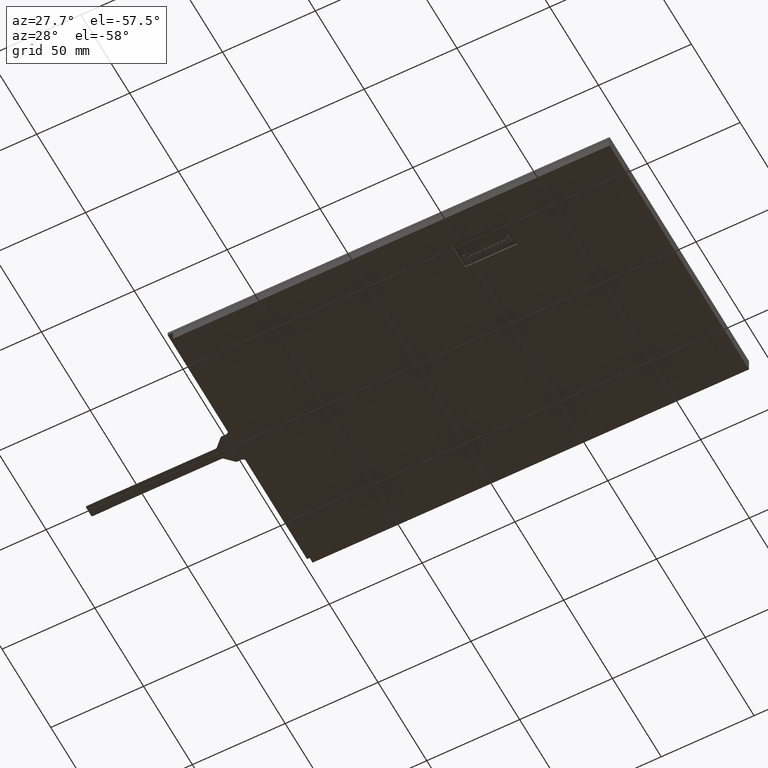
[diagram: clean part render]
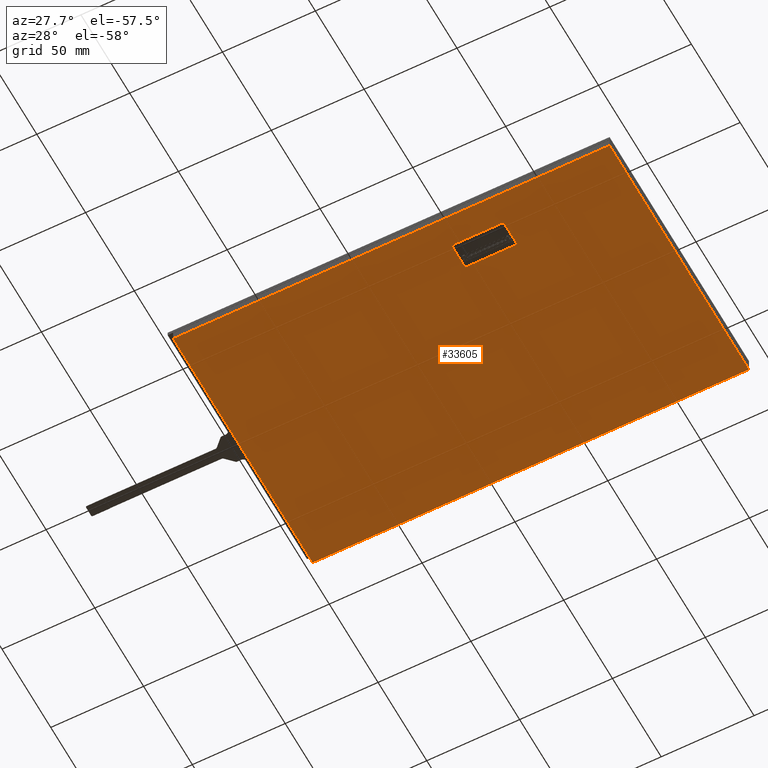
[diagram: same view with one face highlighted and labeled with its STEP entity id]
A machine part, auxiliary view. The second image highlights one B-rep face of the part: STEP entity #33605.
In plain terms, the highlighted planar face has unit normal (0, -0, -1).
Its self-contained STEP definition (entity closure, byte-faithful):
#1902=FACE_BOUND('',#5379,.T.);
#3572=FACE_OUTER_BOUND('',#5378,.T.);
#5378=EDGE_LOOP('',(#30823,#30824,#30825,#30826));
#5379=EDGE_LOOP('',(#30827,#30828,#30829,#30830));
#9083=LINE('',#57067,#12811);
#9086=LINE('',#57072,#12814);
#9088=LINE('',#57076,#12816);
#9090=LINE('',#57079,#12818);
#9101=LINE('',#57139,#12829);
#9103=LINE('',#57143,#12831);
#9105=LINE('',#57147,#12833);
#9107=LINE('',#57150,#12835);
#12811=VECTOR('',#45608,10.);
#12814=VECTOR('',#45613,10.);
#12816=VECTOR('',#45617,10.);
#12818=VECTOR('',#45621,10.);
#12829=VECTOR('',#45686,10.);
#12831=VECTOR('',#45690,10.);
#12833=VECTOR('',#45694,10.);
#12835=VECTOR('',#45698,10.);
#16061=VERTEX_POINT('',#57065);
#16062=VERTEX_POINT('',#57066);
#16063=VERTEX_POINT('',#57071);
#16064=VERTEX_POINT('',#57075);
#16085=VERTEX_POINT('',#57136);
#16086=VERTEX_POINT('',#57138);
#16087=VERTEX_POINT('',#57142);
#16088=VERTEX_POINT('',#57146);
#20962=EDGE_CURVE('',#16061,#16062,#9083,.T.);
#20965=EDGE_CURVE('',#16063,#16061,#9086,.T.);
#20967=EDGE_CURVE('',#16064,#16063,#9088,.T.);
#20969=EDGE_CURVE('',#16062,#16064,#9090,.T.);
#20996=EDGE_CURVE('',#16086,#16085,#9101,.T.);
#20998=EDGE_CURVE('',#16087,#16086,#9103,.T.);
#21000=EDGE_CURVE('',#16088,#16087,#9105,.T.);
#21002=EDGE_CURVE('',#16085,#16088,#9107,.T.);
#30823=ORIENTED_EDGE('',*,*,#21002,.T.);
#30824=ORIENTED_EDGE('',*,*,#21000,.T.);
#30825=ORIENTED_EDGE('',*,*,#20998,.T.);
#30826=ORIENTED_EDGE('',*,*,#20996,.T.);
#30827=ORIENTED_EDGE('',*,*,#20962,.T.);
#30828=ORIENTED_EDGE('',*,*,#20969,.T.);
#30829=ORIENTED_EDGE('',*,*,#20967,.T.);
#30830=ORIENTED_EDGE('',*,*,#20965,.T.);
#31935=PLANE('',#36408);
#33605=ADVANCED_FACE('',(#3572,#1902),#31935,.T.);
#36408=AXIS2_PLACEMENT_3D('',#57151,#45699,#45700);
#45608=DIRECTION('',(1.07552855510562E-16,1.,-4.33680868993406E-18));
#45613=DIRECTION('',(1.,-1.07552855510562E-16,7.85439421835399E-15));
#45617=DIRECTION('',(-1.07552855510562E-16,-1.,4.33680868993406E-18));
#45621=DIRECTION('',(-1.,1.07552855510562E-16,-7.85439421835399E-15));
#45686=DIRECTION('',(-1.66679024894556E-17,1.,-4.33680868993504E-18));
#45690=DIRECTION('',(-1.,3.19632027701257E-17,-7.85439421835399E-15));
#45694=DIRECTION('',(-1.07552855510562E-16,-1.,4.33680868993406E-18));
#45698=DIRECTION('',(1.,-1.07552855510562E-16,7.85439421835399E-15));
#45699=DIRECTION('center_axis',(7.85439421835399E-15,-4.33680868993491E-18,
-1.));
#45700=DIRECTION('ref_axis',(-1.,1.07552855510562E-16,-7.85439421835399E-15));
#57065=CARTESIAN_POINT('',(-227.664560013878,0.523580187365376,-90.8070944214059));
#57066=CARTESIAN_POINT('',(-227.664560013878,14.5235801873654,-90.8070944214059));
#57067=CARTESIAN_POINT('',(-227.664560013878,28.7735801873654,-90.8070944214059));
#57071=CARTESIAN_POINT('',(-255.664560013878,0.523580187365384,-90.8070944214061));
#57072=CARTESIAN_POINT('',(-267.939560013878,0.523580187365384,-90.8070944214062));
#57075=CARTESIAN_POINT('',(-255.664560013878,14.5235801873654,-90.8070944214061));
#57076=CARTESIAN_POINT('',(-255.664560013878,35.7735801873654,-90.8070944214061));
#57079=CARTESIAN_POINT('',(-253.939560013878,14.5235801873654,-90.8070944214061));
#57136=CARTESIAN_POINT('',(-397.714560013878,128.523580187365,-90.8070944214073));
#57138=CARTESIAN_POINT('',(-397.714560013878,-14.4764198126346,-90.8070944214073));
#57139=CARTESIAN_POINT('',(-397.714560013878,-14.4764198126346,-90.8070944214073));
#57142=CARTESIAN_POINT('',(-162.714560013878,-14.4764198126346,-90.8070944214054));
#57143=CARTESIAN_POINT('',(-162.714560013878,-14.4764198126346,-90.8070944214054));
#57146=CARTESIAN_POINT('',(-162.714560013878,128.523580187365,-90.8070944214054));
#57147=CARTESIAN_POINT('',(-162.714560013878,128.523580187365,-90.8070944214054));
#57150=CARTESIAN_POINT('',(-397.714560013878,128.523580187365,-90.8070944214073));
#57151=CARTESIAN_POINT('Origin',(-280.214560013878,57.0235801873654,-90.8070944214063));